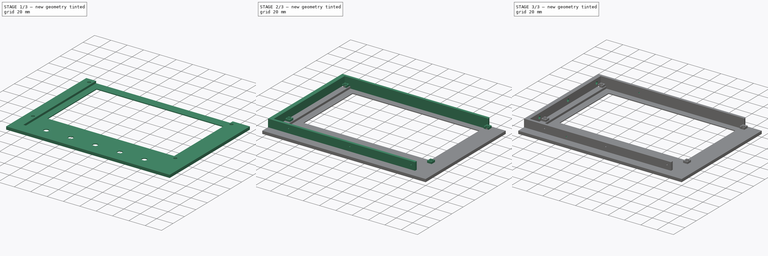
[diagram: build sequence overview — one tinted view per stage of 3, left to right]
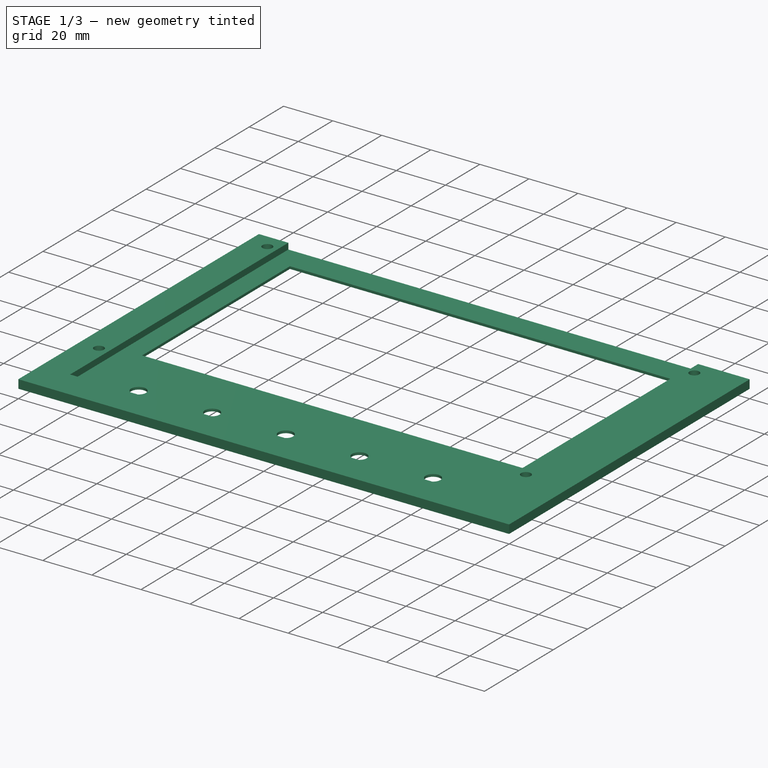
[diagram: stage 1 of 3 — iso view after this stage's code; geometry added in this stage tinted green]
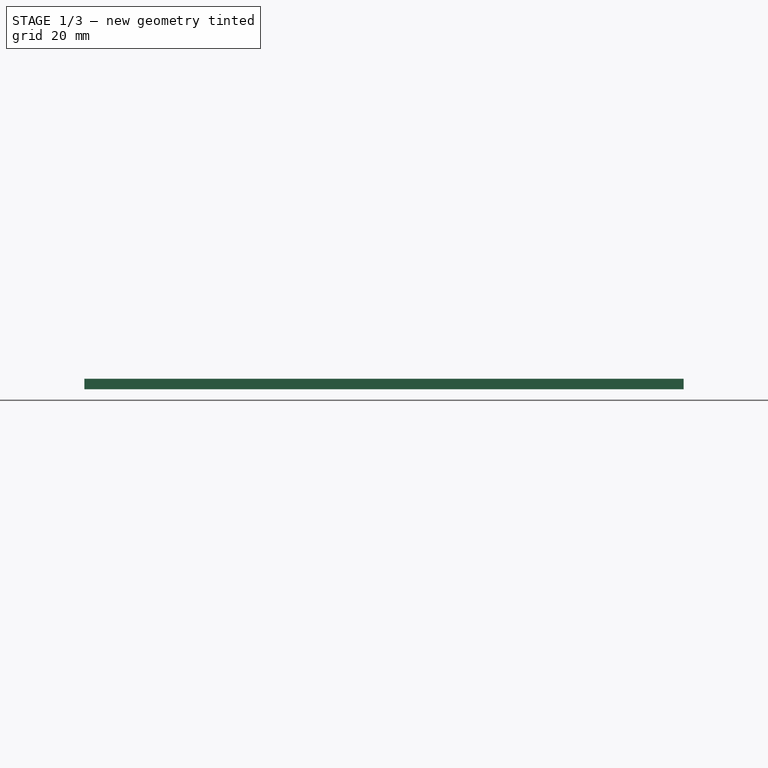
[diagram: stage 1 of 3 — front view after this stage's code; geometry added in this stage tinted green]
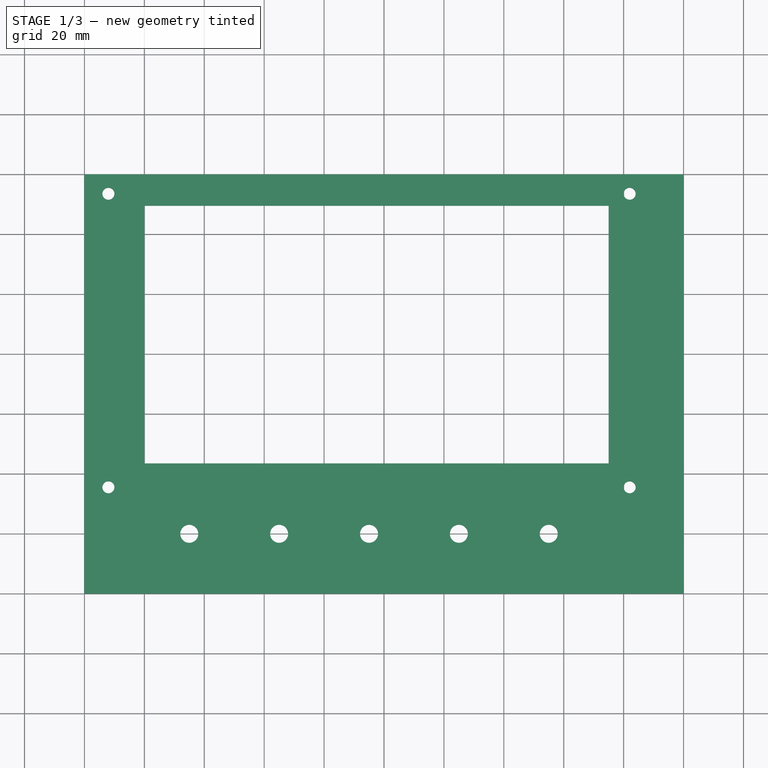
[diagram: stage 1 of 3 — top view after this stage's code; geometry added in this stage tinted green]
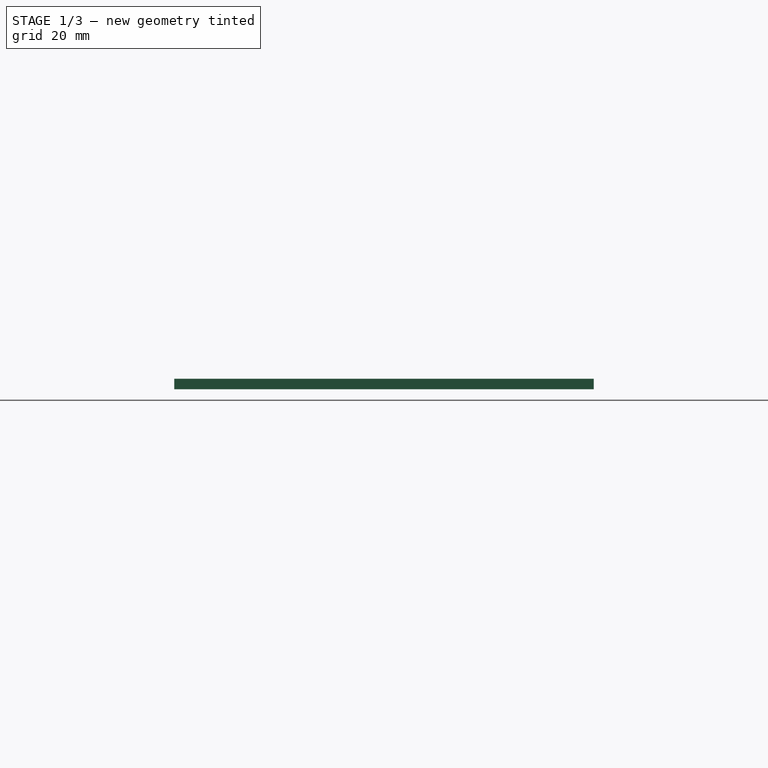
[diagram: stage 1 of 3 — right view after this stage's code; geometry added in this stage tinted green]
FCSTD DOCUMENT  (FreeCAD 0.19R24267 +99 (Git))
Label: T41 7in Front left panel V007
License: All rights reserved
LicenseURL: http://en.wikipedia.org/wiki/All_rights_reserved
objects: Sketcher::SketchObject×7, PartDesign::Pocket×4, PartDesign::Pad×3, PartDesign::Body×1
note: 22 computed .brp shape members not serialized (recipe doc carries the construction recipe); baked Part::Feature solids carry a one-line shape summary decoded from their .brp

FEATURE [Sketcher::SketchObject] Sketch  label="Main Front"
  FullyConstrained = true
  MapMode = 5
  Support = -> [XY_Plane]
  sketch-geometry (24):
    g0: LineSegment StartX=-200 StartY=60 StartZ=0 EndX=0 EndY=60 EndZ=0
    g1: LineSegment StartX=0 StartY=60 StartZ=0 EndX=0 EndY=-80 EndZ=0
    g2: LineSegment StartX=0 StartY=-80 StartZ=0 EndX=-200 EndY=-80 EndZ=0
    g3: LineSegment StartX=-200 StartY=-80 StartZ=0 EndX=-200 EndY=60 EndZ=0
    g4: LineSegment StartX=-180 StartY=49.5 StartZ=0 EndX=-25 EndY=49.5 EndZ=0
    g5: LineSegment StartX=-25 StartY=49.5 StartZ=0 EndX=-25 EndY=-36.5 EndZ=0
    g6: LineSegment StartX=-25 StartY=-36.5 StartZ=0 EndX=-180 EndY=-36.5 EndZ=0
    g7: LineSegment StartX=-180 StartY=-36.5 StartZ=0 EndX=-180 EndY=49.5 EndZ=0
    g8: Circle CenterX=-165 CenterY=-60 CenterZ=0 NormalX=0 NormalY=0 NormalZ=1 AngleXU=0 Radius=3
    g9: Circle CenterX=-135 CenterY=-60 CenterZ=0 NormalX=0 NormalY=0 NormalZ=1 AngleXU=0 Radius=3
    g10: LineSegment StartX=-165 StartY=-60 StartZ=0 EndX=-135 EndY=-60 EndZ=0
    g11: Circle CenterX=-105 CenterY=-60 CenterZ=0 NormalX=0 NormalY=0 NormalZ=1 AngleXU=0 Radius=3
    g12: LineSegment StartX=-135 StartY=-60 StartZ=0 EndX=-105 EndY=-60 EndZ=0
    g13: Circle CenterX=-75 CenterY=-60 CenterZ=0 NormalX=0 NormalY=0 NormalZ=1 AngleXU=0 Radius=3
    g14: LineSegment StartX=-105 StartY=-60 StartZ=0 EndX=-75 EndY=-60 EndZ=0
    g15: Circle CenterX=-192 CenterY=53.5 CenterZ=0 NormalX=0 NormalY=0 NormalZ=1 AngleXU=0 Radius=2
    g16: Circle CenterX=-192 CenterY=-44.5 CenterZ=0 NormalX=0 NormalY=0 NormalZ=1 AngleXU=0 Radius=2
    g17: Circle CenterX=-18 CenterY=-44.5 CenterZ=0 NormalX=0 NormalY=0 NormalZ=1 AngleXU=0 Radius=2
    g18: LineSegment StartX=-195 StartY=56.5 StartZ=0 EndX=-15 EndY=56.5 EndZ=0
    g19: LineSegment StartX=-15 StartY=56.5 StartZ=0 EndX=-15 EndY=-47.5 EndZ=0
    g20: LineSegment StartX=-15 StartY=-47.5 StartZ=0 EndX=-195 EndY=-47.5 EndZ=0
    g21: LineSegment StartX=-195 StartY=-47.5 StartZ=0 EndX=-195 EndY=56.5 EndZ=0
    g22: Circle CenterX=-18 CenterY=53.5 CenterZ=0 NormalX=0 NormalY=0 NormalZ=1 AngleXU=0 Radius=2
    g23: Circle CenterX=-45 CenterY=-60 CenterZ=0 NormalX=0 NormalY=0 NormalZ=1 AngleXU=0 Radius=3
  constraints (69):
    c: Coincident(g0,g1)
    c: Coincident(g1,g2)
    c: Coincident(g2,g3)
    c: Coincident(g3,g0)
    c: Horizontal(g2)
    c: Vertical(g1)
    c: DistanceY(g3,g3) = 140
    c: Coincident(g4,g5)
    c: Coincident(g5,g6)
    c: Coincident(g6,g7)
    c: Coincident(g7,g4)
    c: Horizontal(g4)
    c: Horizontal(g6)
    c: Vertical(g5)
    c: Vertical(g7)
    c: Radius(g8) = 3
    c: Radius(g9) = 3
    c: Coincident(g8,g10)
    c: Coincident(g9,g10)
    c: Distance(g10) = 30
    c: Angle(g10) = 0
    c: Radius(g11) = 3
    c: Coincident(g9,g12)
    c: Coincident(g11,g12)
    c: Equal(g10,g12)
    c: Parallel(g12,g10)
    c: Radius(g13) = 3
    c: Coincident(g11,g14)
    c: Coincident(g13,g14)
    c: Equal(g10,g14)
    c: Parallel(g14,g10)
    c: Radius(g15) = 2
    c: Radius(g16) = 2
    c: Radius(g17) = 2
    c: DistanceX(g0,g0) = 200
    c: DistanceX(g-1,g1) = 0
    c: DistanceX(g2,g2) = 200
    c: Perpendicular(g0,g1)
    c: DistanceY(g-1,g0) = 60
    c: Coincident(g19,g20)
    c: Coincident(g20,g21)
    c: Coincident(g21,g18)
    c: Horizontal(g18)
    c: Horizontal(g20)
    c: Vertical(g19)
    c: Vertical(g21)
    c: DistanceX(g20,g20) = 180
    c: DistanceY(g21,g21) = 104
    c: DistanceY(g4,g18) = 7
    c: DistanceY(g15,g18) = 3
    c: DistanceX(g18,g15) = 3
    c: DistanceX(g18,g4) = 15
    c: DistanceX(g20,g16) = 3
    c: DistanceX(g17,g19) = 3
    c: DistanceY(g19,g17) = 3
    c: DistanceY(g20,g16) = 3
    c: DistanceY(g20,g6) = 11
    c: Coincident(g19,g18)
    c: DistanceY(g18,g0) = 3.5
    c: DistanceX(g0,g18) = 5
    c: Radius(g22) = 2
    c: DistanceX(g22,g18) = 3
    c: DistanceY(g22,g18) = 3
    c: DistanceX(g2,g8) = 35
    c: DistanceY(g2,g8) = 20
    c: Horizontal(g13,g23)
    c: DistanceX(g13,g23) = 30
    c: Diameter(g23) = 6
    c: DistanceX(g4,g4) = 155
FEATURE [Sketcher::SketchObject] Sketch002  label="Screen pocket"
  AttachmentOffset = pos=(0,0,3.5) rot=(0,0,1;0rad)
  FullyConstrained = true
  MapMode = 5
  Placement = pos=(0,0,3.5) rot=(0,0,1;0rad)
  Support = -> [XY_Plane]
  sketch-geometry (4):
    g0: LineSegment StartX=-188 StartY=63.56 StartZ=0 EndX=-21 EndY=63.56 EndZ=0
    g1: LineSegment StartX=-21 StartY=63.56 StartZ=0 EndX=-21 EndY=-67 EndZ=0
    g2: LineSegment StartX=-188 StartY=-67 StartZ=0 EndX=-188 EndY=63.56 EndZ=0
    g3: LineSegment StartX=-21 StartY=-67 StartZ=0 EndX=-188 EndY=-67 EndZ=0
  constraints (12):
    c: Coincident(g0,g1)
    c: Coincident(g2,g0)
    c: Horizontal(g0)
    c: Vertical(g1)
    c: Vertical(g2)
    c: DistanceX(g2,g1) = 167
    c: DistanceX(g1,g-1) = 21
    c: Horizontal(g3)
    c: Coincident(g2,g3)
    c: DistanceY(g2,g0) = 130.56
    c: DistanceY(g3,g-1) = 67
    c: Coincident(g1,g3)
FEATURE [PartDesign::Pad] Pad
  Direction = (1,1,1)
  Length = 3.5
  Length2 = 100
  Profile = -> Sketch
  Type = 0
FEATURE [PartDesign::Pocket] Pocket001  label="Screen Pocket"
  BaseFeature = -> Pad
  Length = 2.5
  Length2 = 100
  Profile = -> Sketch002
  Type = 0
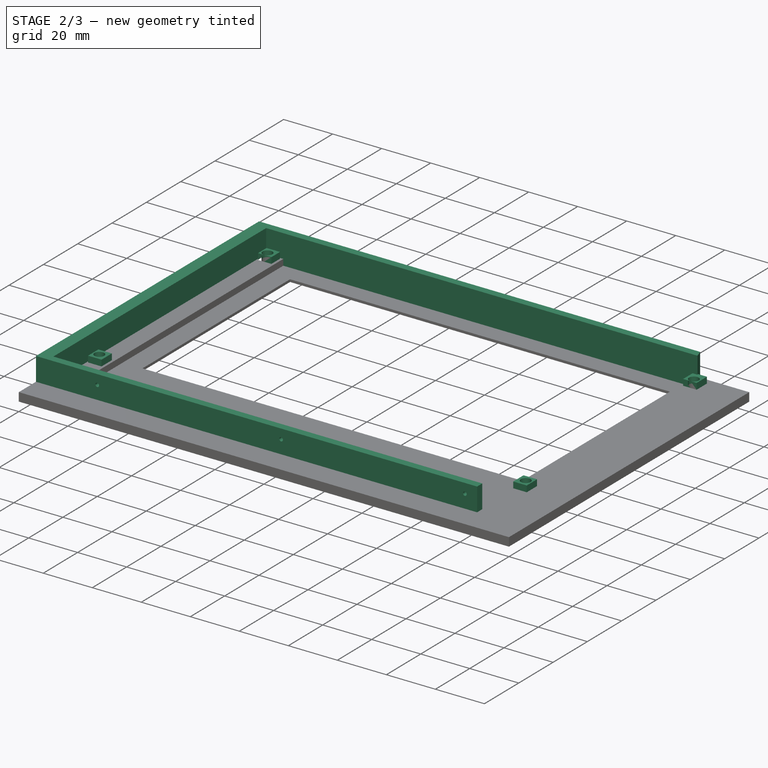
[diagram: stage 2 of 3 — iso view after this stage's code; geometry added in this stage tinted green]
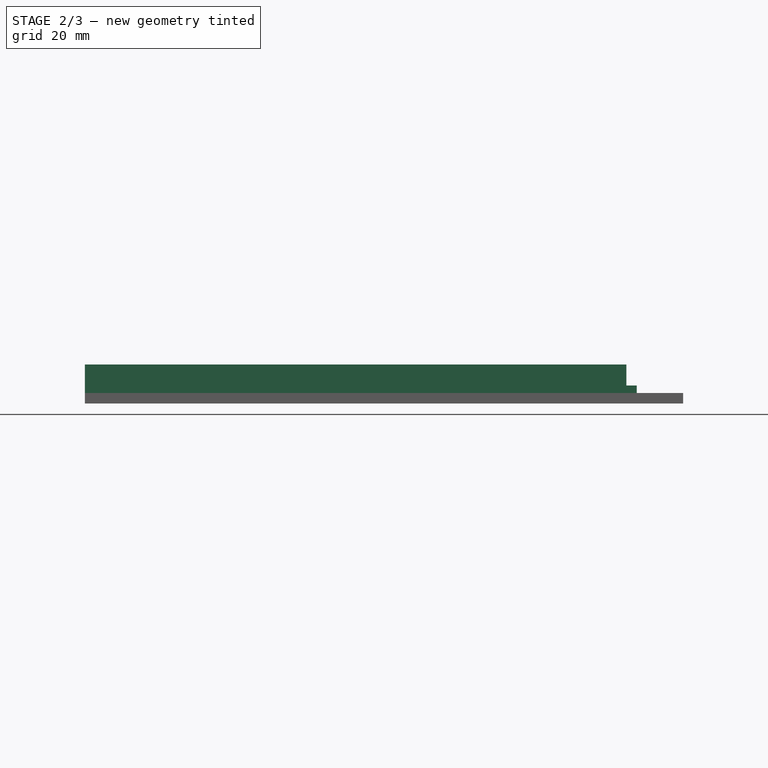
[diagram: stage 2 of 3 — front view after this stage's code; geometry added in this stage tinted green]
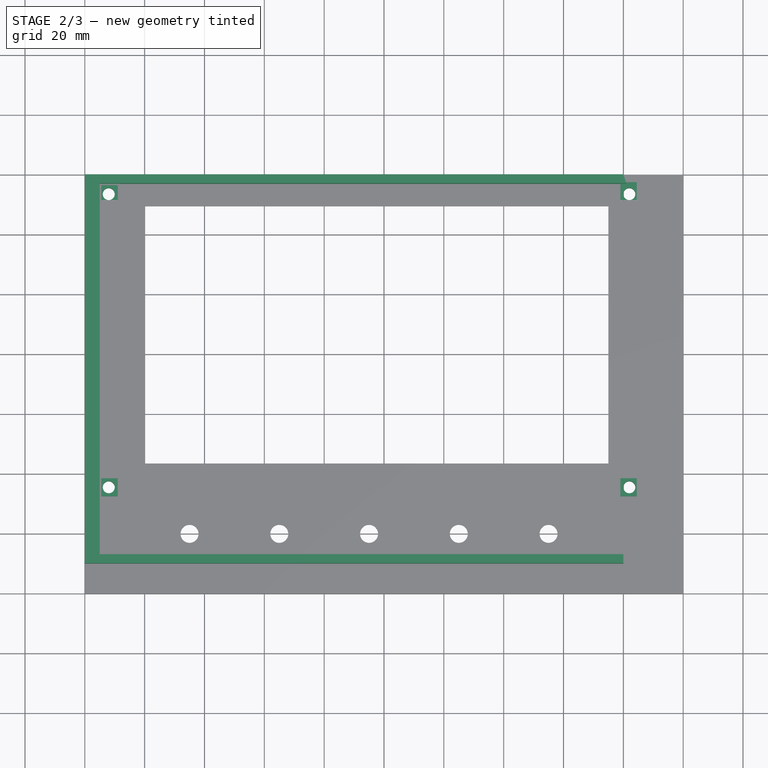
[diagram: stage 2 of 3 — top view after this stage's code; geometry added in this stage tinted green]
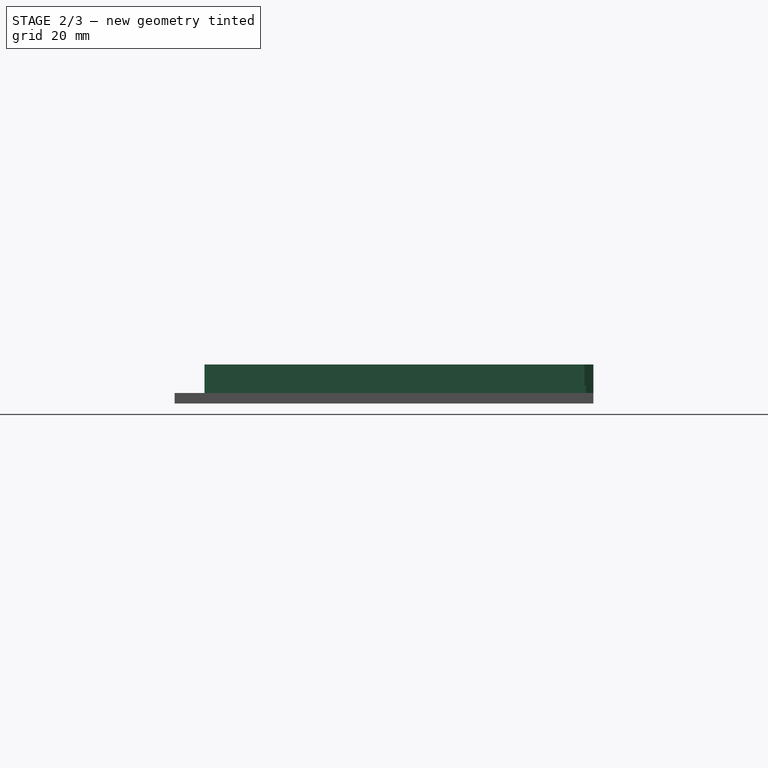
[diagram: stage 2 of 3 — right view after this stage's code; geometry added in this stage tinted green]
FEATURE [Sketcher::SketchObject] Sketch003  label="Flange"
  FullyConstrained = true
  MapMode = 5
  Support = -> [XY_Plane]
  sketch-geometry (8):
    g0: LineSegment StartX=-20 StartY=60 StartZ=0 EndX=-200 EndY=60 EndZ=0
    g1: LineSegment StartX=-200 StartY=60 StartZ=0 EndX=-200 EndY=-70 EndZ=0
    g2: LineSegment StartX=-200 StartY=-70 StartZ=0 EndX=-20 EndY=-70 EndZ=0
    g3: LineSegment StartX=-20 StartY=-70 StartZ=0 EndX=-20 EndY=-67 EndZ=0
    g4: LineSegment StartX=-20 StartY=-67 StartZ=0 EndX=-195 EndY=-67 EndZ=0
    g5: LineSegment StartX=-195 StartY=-67 StartZ=0 EndX=-195 EndY=57 EndZ=0
    g6: LineSegment StartX=-195 StartY=57 StartZ=0 EndX=-19 EndY=57 EndZ=0
    g7: LineSegment StartX=-19 StartY=57 StartZ=0 EndX=-20 EndY=60 EndZ=0
  constraints (24):
    c: Horizontal(g0)
    c: Coincident(g0,g1)
    c: Vertical(g1)
    c: Coincident(g1,g2)
    c: Horizontal(g2)
    c: Coincident(g2,g3)
    c: Vertical(g3)
    c: Coincident(g3,g4)
    c: Horizontal(g4)
    c: Coincident(g4,g5)
    c: Vertical(g5)
    c: Coincident(g5,g6)
    c: Horizontal(g6)
    c: Coincident(g6,g7)
    c: Coincident(g7,g0)
    c: DistanceX(g0,g0) = 180
    c: DistanceX(g2,g2) = 180
    c: DistanceX(g4,g4) = 175
    c: DistanceX(g6,g6) = 176
    c: DistanceY(g1,g1) = 130
    c: DistanceY(g3,g3) = 3
    c: DistanceY(g-1,g0) = 60
    c: DistanceX(g0,g-1) = 200
    c: DistanceY(g6,g0) = 3
FEATURE [Sketcher::SketchObject] Sketch007
  FullyConstrained = true
  MapMode = 5
  Support = -> [XY_Plane]
  sketch-geometry (20):
    g0: Circle CenterX=-192 CenterY=53.5 CenterZ=0 NormalX=0 NormalY=0 NormalZ=1 AngleXU=0 Radius=2
    g1: Circle CenterX=-18 CenterY=53.5 CenterZ=0 NormalX=0 NormalY=0 NormalZ=1 AngleXU=0 Radius=2
    g2: LineSegment StartX=-194.5 StartY=56.5 StartZ=0 EndX=-189 EndY=56.5 EndZ=0
    g3: LineSegment StartX=-189 StartY=56.5 StartZ=0 EndX=-189 EndY=51.5 EndZ=0
    g4: LineSegment StartX=-189 StartY=51.5 StartZ=0 EndX=-194.5 EndY=51.5 EndZ=0
    g5: LineSegment StartX=-194.5 StartY=51.5 StartZ=0 EndX=-194.5 EndY=56.5 EndZ=0
    g6: LineSegment StartX=-21 StartY=51.5 StartZ=0 EndX=-15.5 EndY=51.5 EndZ=0
    g7: LineSegment StartX=-15.5 StartY=51.5 StartZ=0 EndX=-15.5 EndY=57.5 EndZ=0
    g8: LineSegment StartX=-15.5 StartY=57.5 StartZ=0 EndX=-21 EndY=57.5 EndZ=0
    g9: LineSegment StartX=-21 StartY=57.5 StartZ=0 EndX=-21 EndY=51.5 EndZ=0
    g10: LineSegment StartX=-21 StartY=-41.5 StartZ=0 EndX=-15.5 EndY=-41.5 EndZ=0
    g11: LineSegment StartX=-15.5 StartY=-41.5 StartZ=0 EndX=-15.5 EndY=-47.5 EndZ=0
    g12: LineSegment StartX=-15.5 StartY=-47.5 StartZ=0 EndX=-21 EndY=-47.5 EndZ=0
    g13: LineSegment StartX=-21 StartY=-47.5 StartZ=0 EndX=-21 EndY=-41.5 EndZ=0
    g14: Circle CenterX=-18 CenterY=-44.5 CenterZ=0 NormalX=0 NormalY=0 NormalZ=1 AngleXU=0 Radius=2
    g15: LineSegment StartX=-189 StartY=-41.5 StartZ=0 EndX=-194.5 EndY=-41.5 EndZ=0
    g16: LineSegment StartX=-194.5 StartY=-41.5 StartZ=0 EndX=-194.5 EndY=-47.5 EndZ=0
    g17: LineSegment StartX=-194.5 StartY=-47.5 StartZ=0 EndX=-189 EndY=-47.5 EndZ=0
    g18: LineSegment StartX=-189 StartY=-47.5 StartZ=0 EndX=-189 EndY=-41.5 EndZ=0
    g19: Circle CenterX=-192 CenterY=-44.5 CenterZ=0 NormalX=0 NormalY=0 NormalZ=1 AngleXU=0 Radius=2
  constraints (60):
    c: Diameter(g0) = 4
    c: Diameter(g1) = 4
    c: Coincident(g2,g3)
    c: Coincident(g3,g4)
    c: Coincident(g4,g5)
    c: Coincident(g5,g2)
    c: Horizontal(g2)
    c: Horizontal(g4)
    c: Vertical(g3)
    c: Vertical(g5)
    c: DistanceY(g3,g3) = 5
    c: DistanceX(g4,g4) = 5.5
    c: DistanceY(g-1,g3) = 51.5
    c: DistanceX(g3,g-1) = 189
    c: DistanceX(g0,g3) = 3
    c: DistanceY(g3,g0) = 2
    c: Coincident(g6,g7)
    c: Coincident(g7,g8)
    c: Coincident(g8,g9)
    c: Coincident(g9,g6)
    c: Horizontal(g6)
    c: Horizontal(g8)
    c: Vertical(g7)
    c: Vertical(g9)
    c: DistanceX(g6,g6) = 5.5
    c: DistanceY(g9,g9) = 6
    c: DistanceY(g-1,g6) = 51.5
    c: DistanceX(g6,g-1) = 21
    c: DistanceX(g6,g1) = 3
    c: DistanceY(g6,g1) = 2
    c: Coincident(g10,g11)
    c: Coincident(g11,g12)
    c: Coincident(g12,g13)
    c: Coincident(g13,g10)
    c: Horizontal(g10)
    c: Horizontal(g12)
    c: Vertical(g11)
    c: Vertical(g13)
    c: DistanceX(g10,g10) = 5.5
    c: DistanceY(g13,g13) = 6
    c: DistanceX(g10,g-1) = 21
    c: DistanceY(g10,g-1) = 41.5
    c: Diameter(g14) = 4
    c: DistanceX(g10,g14) = 3
    c: DistanceY(g14,g10) = 3
    c: Coincident(g15,g16)
    c: Coincident(g16,g17)
    c: Coincident(g17,g18)
    c: Coincident(g18,g15)
    c: Horizontal(g15)
    c: Horizontal(g17)
    c: Vertical(g16)
    c: Vertical(g18)
    c: DistanceX(g15,g15) = 5.5
    c: DistanceY(g18,g18) = 6
    c: DistanceX(g15,g-1) = 189
    c: DistanceY(g15,g-1) = 41.5
    c: Diameter(g19) = 4
    c: DistanceY(g19,g15) = 3
    c: DistanceX(g19,g15) = 3
FEATURE [PartDesign::Pad] Pad002  label="Display mtg pads"
  BaseFeature = -> Pocket001
  Direction = (1,1,1)
  Length = 6
  Length2 = 100
  Profile = -> Sketch007
  Type = 0
FEATURE [PartDesign::Pad] Pad003  label="Flange001"
  BaseFeature = -> Pad002
  Direction = (1,1,1)
  Length = 13
  Length2 = 100
  Profile = -> Sketch003
  Type = 0
FEATURE [Sketcher::SketchObject] Sketch010
  AttachmentOffset = pos=(0,0,70) rot=(0,0,1;0rad)
  FullyConstrained = true
  MapMode = 5
  Placement = pos=(0,-70,-1.55e-14) rot=(1,0,0;1.5708rad)
  Support = -> [XZ_Plane]
  sketch-geometry (3):
    g0: Circle CenterX=-175 CenterY=9 CenterZ=0 NormalX=0 NormalY=0 NormalZ=1 AngleXU=0 Radius=0.75
    g1: Circle CenterX=-25 CenterY=9 CenterZ=0 NormalX=0 NormalY=0 NormalZ=1 AngleXU=0 Radius=0.75
    g2: Circle CenterX=-100 CenterY=9 CenterZ=0 NormalX=0 NormalY=0 NormalZ=1 AngleXU=0 Radius=0.75
  constraints (9):
    c: DistanceX(g0,g-1) = 175
    c: DistanceX(g1,g-1) = 25
    c: DistanceY(g-1,g0) = 9
    c: Horizontal(g0,g1)
    c: Equal(g0,g1)
    c: Diameter(g0) = 1.5
    c: DistanceX(g2,g-1) = 100
    c: DistanceY(g-1,g2) = 9
    c: Diameter(g2) = 1.5
FEATURE [PartDesign::Pocket] Pocket002  label="Base Mtg Holes"
  BaseFeature = -> Pad003
  Length = 25
  Length2 = 100
  Midplane = true
  Profile = -> Sketch010
  Type = 0
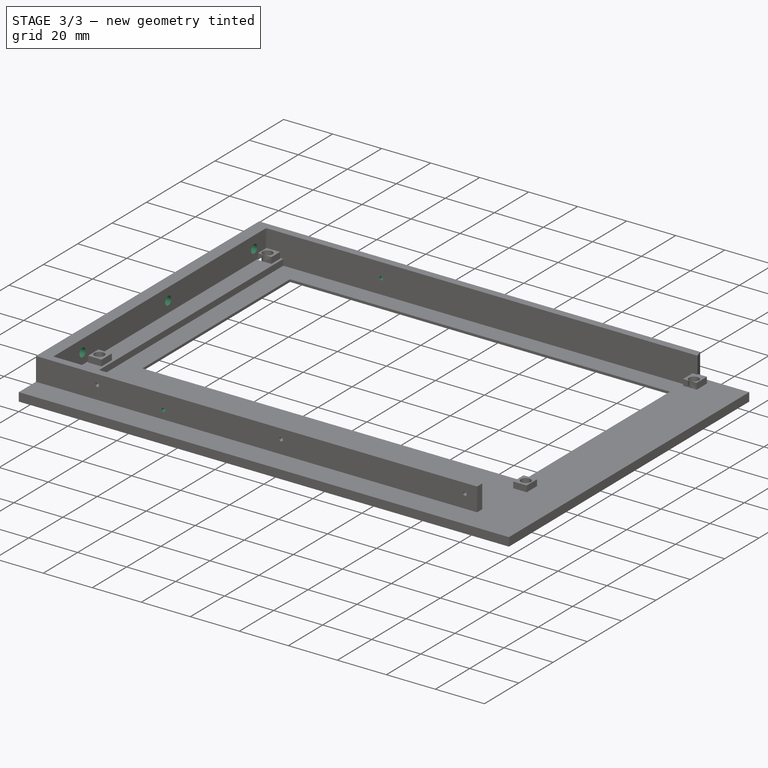
[diagram: stage 3 of 3 — iso view after this stage's code; geometry added in this stage tinted green]
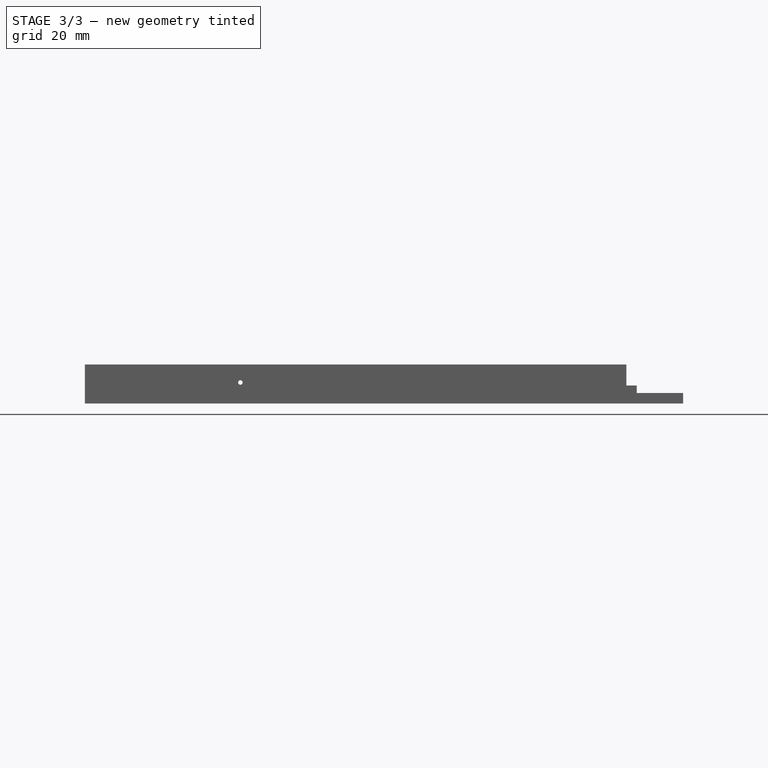
[diagram: stage 3 of 3 — front view after this stage's code; geometry added in this stage tinted green]
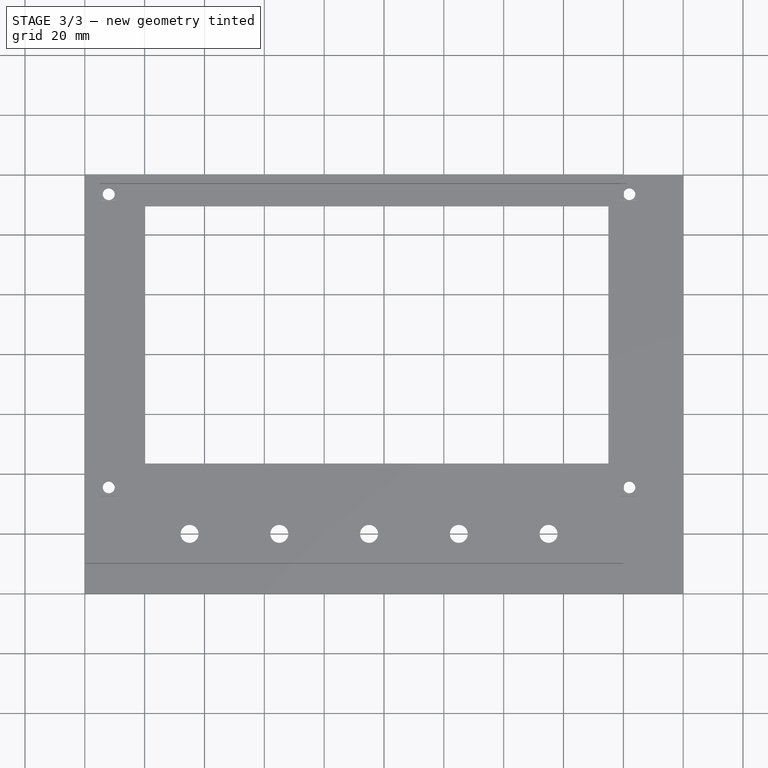
[diagram: stage 3 of 3 — top view after this stage's code; geometry added in this stage tinted green]
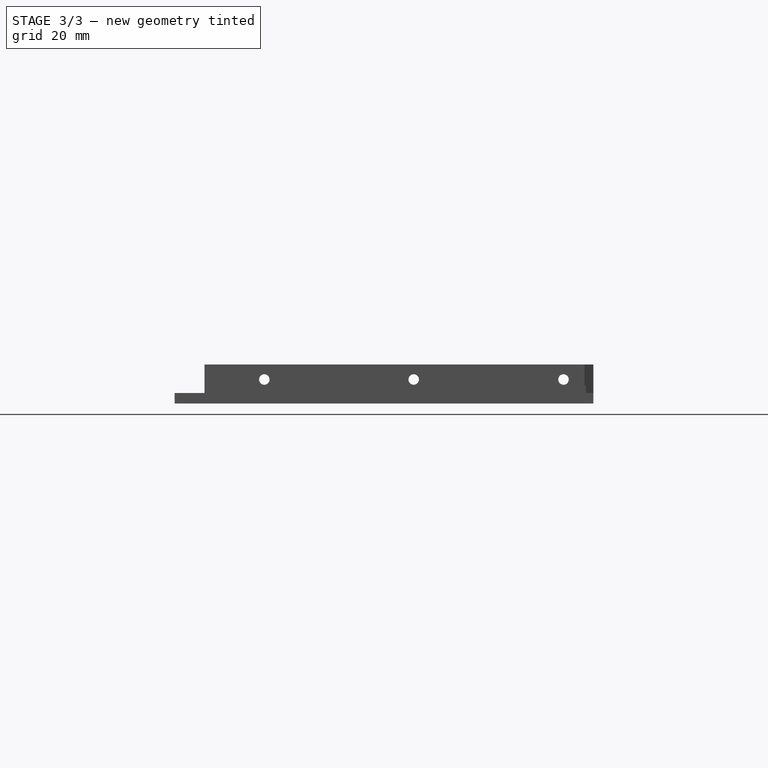
[diagram: stage 3 of 3 — right view after this stage's code; geometry added in this stage tinted green]
FEATURE [Sketcher::SketchObject] Sketch011
  AttachmentOffset = pos=(0,0,-65) rot=(0,0,1;0rad)
  FullyConstrained = true
  MapMode = 5
  Placement = pos=(0,65,1.44e-14) rot=(1,0,0;1.5708rad)
  Support = -> [XZ_Plane]
  sketch-geometry (1):
    g0: Circle CenterX=-148 CenterY=7 CenterZ=0 NormalX=0 NormalY=0 NormalZ=1 AngleXU=0 Radius=0.75
  constraints (3):
    c: Radius(g0) = 0.75
    c: DistanceX(g0,g-1) = 148
    c: DistanceY(g-1,g0) = 7
FEATURE [PartDesign::Pocket] Pocket
  BaseFeature = -> Pocket002
  Length = 10000
  Length2 = 100
  Midplane = true
  Profile = -> Sketch011
  Type = 0
FEATURE [Sketcher::SketchObject] Sketch012
  AttachmentOffset = pos=(0,0,-200) rot=(0,0,1;0rad)
  FullyConstrained = false
  MapMode = 5
  Placement = pos=(-200,4.44e-14,-4.44e-14) rot=(0.57735,0.57735,0.57735;2.0944rad)
  Support = -> [YZ_Plane]
  sketch-geometry (3):
    g0: Circle CenterX=50 CenterY=8 CenterZ=0 NormalX=0 NormalY=0 NormalZ=1 AngleXU=0 Radius=1.75
    g1: Circle CenterX=-50 CenterY=8 CenterZ=0 NormalX=0 NormalY=0 NormalZ=1 AngleXU=0 Radius=1.75
    g2: Circle CenterX=-0.066921 CenterY=8 CenterZ=0 NormalX=0 NormalY=0 NormalZ=1 AngleXU=0 Radius=1.75
  constraints (8):
    c: DistanceX(g-1,g0) = 50
    c: DistanceX(g1,g-1) = 50
    c: DistanceY(g-1,g2) = 8
    c: Horizontal(g1,g2)
    c: Horizontal(g0,g2)
    c: Equal(g0,g2)
    c: Equal(g0,g1)
    c: Diameter(g0) = 3.5
FEATURE [PartDesign::Pocket] Pocket003
  BaseFeature = -> Pocket
  Length = 10
  Length2 = 100
  Midplane = true
  Profile = -> Sketch012
  Type = 0
FEATURE [PartDesign::Body] Body  label="Front Panel full"
  Group = -> [Sketch,Pad,Sketch002,Sketch007,Pocket001,Sketch003,Pad002,Pad003,Sketch010,Pocket002,Sketch011,Pocket,Sketch012,Pocket003]
  Origin = -> Origin
  Tip = -> Pocket003
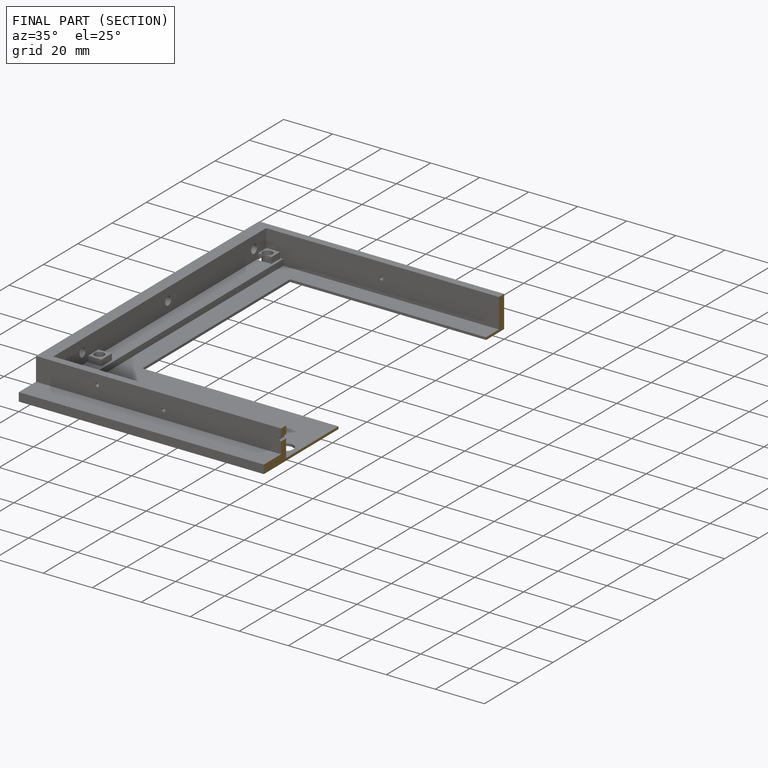
[diagram: finished part — half-section view (interior)]
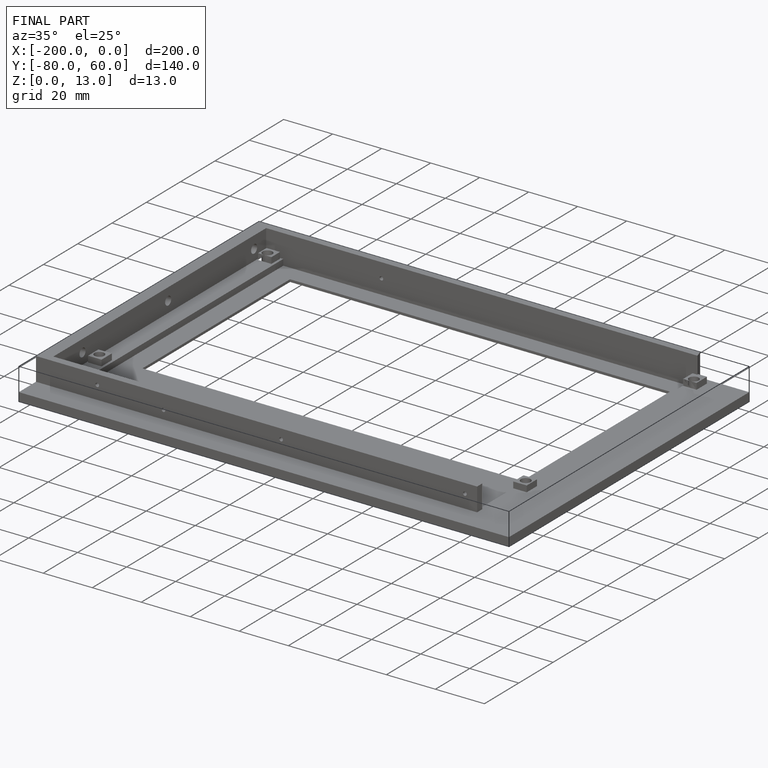
[diagram: finished part — iso view with bounding-box wireframe]
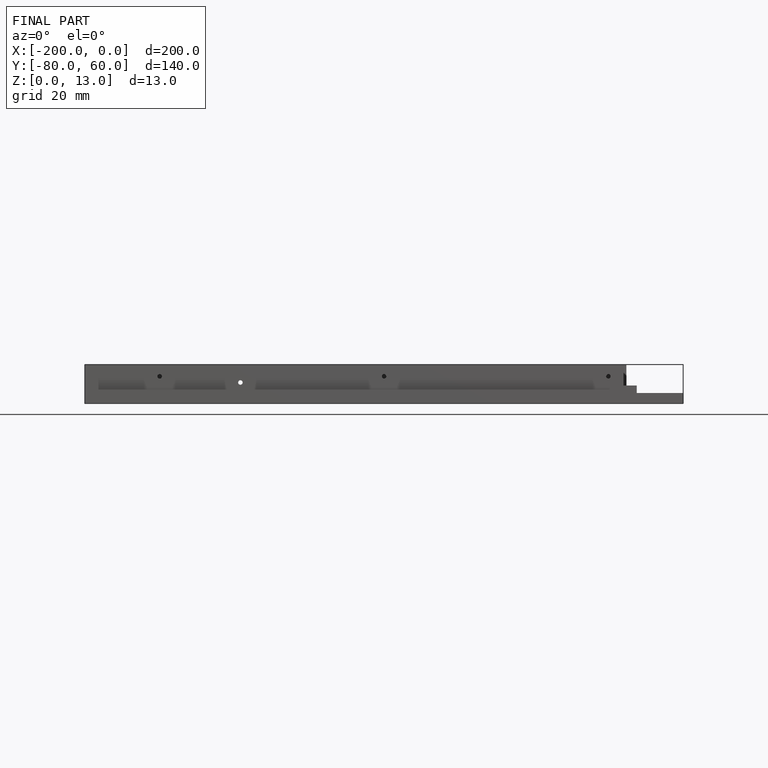
[diagram: finished part — front view with bounding-box wireframe]
